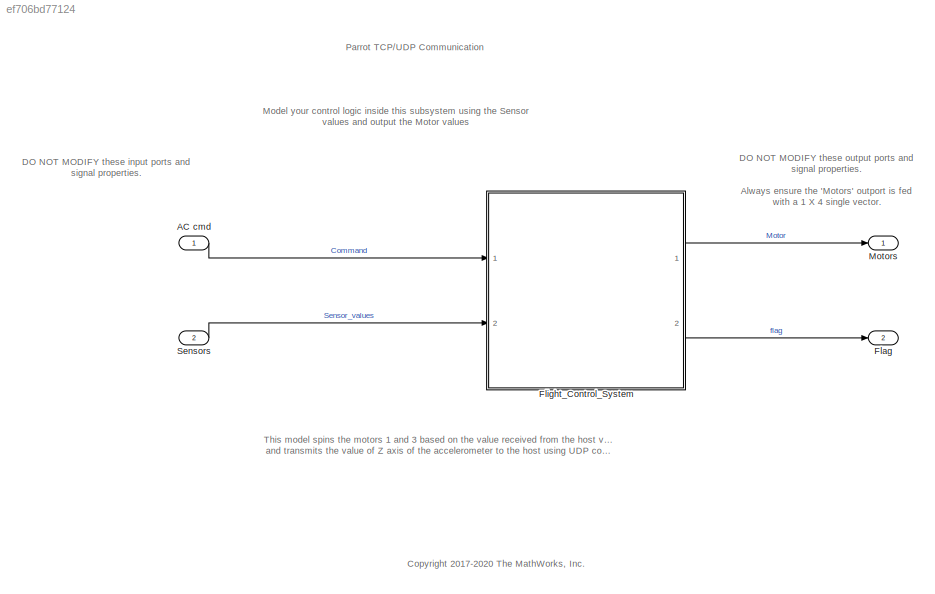
MODEL slx_ef706bd77124
KIND model
CONFIG AbsTol = auto
CONFIG EnableMultiTasking = off
CONFIG FixedStep = auto
CONFIG InitFcn = load('BusDefinitions.mat')
CONFIG MaxStep = auto
CONFIG MinStep = auto
CONFIG RelTol = 1e-3
CONFIG SampleTimeConstraint = Unconstrained
CONFIG SolverName = FixedStepAuto
CONFIG StartTime = 0.0
CONFIG StopTime = 100
BLOCK [Inport] AC cmd
  BusOutputAsStruct = on
  OutDataTypeStr = Bus: CommandBus
BLOCK [Outport] Flag
  OutDataTypeStr = uint8
  Port = 2
  PortDimensions = 1
  VectorParamsAs1DForOutWhenUnconnected = off
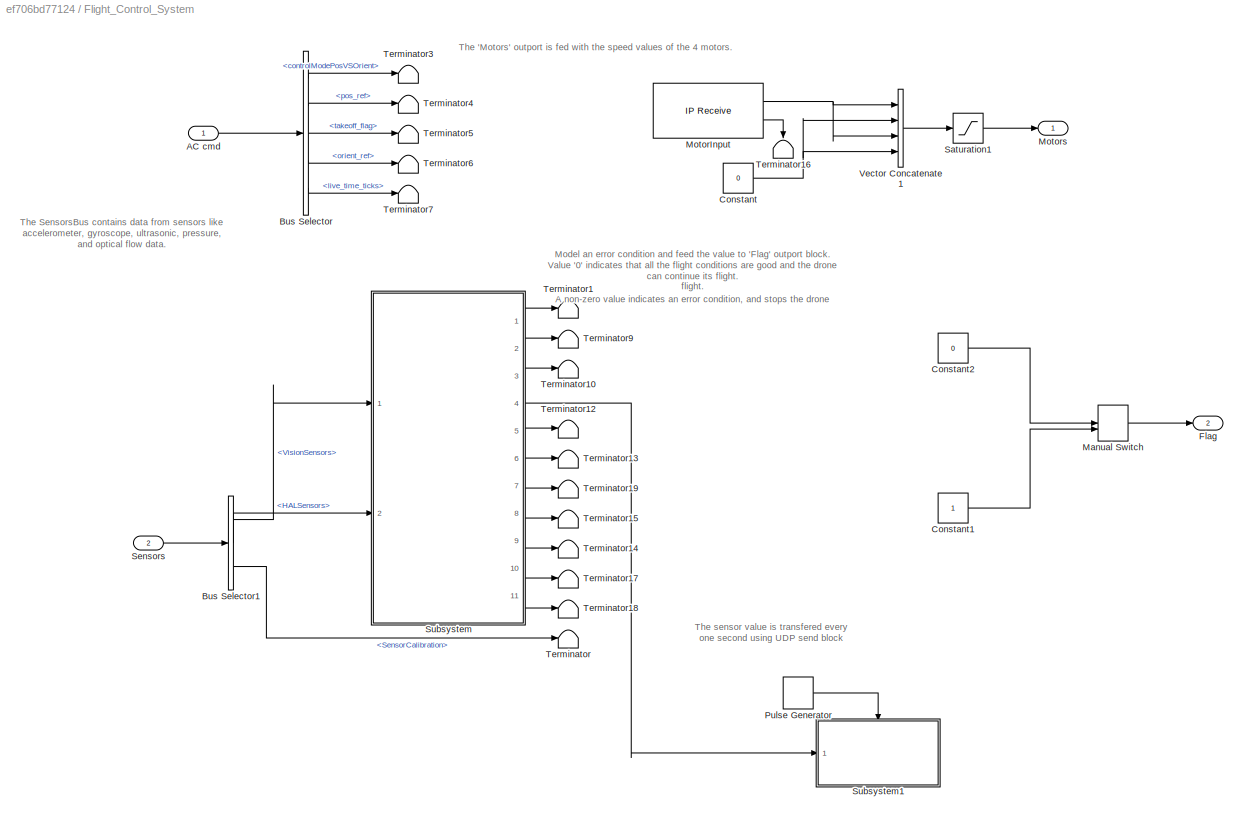
BLOCK [SubSystem] Flight_Control_System
  InitFcn = codertarget.parrot.internal.fcsSubsystemCallback(gcb);
  Ports = [2, 2]
  RTWSystemCode = Reusable function
  RequestExecContextInheritance = off
BLOCK [Inport] Flight_Control_System/AC cmd
BLOCK [BusSelector] Flight_Control_System/Bus Selector
  OutputSignals = controlModePosVSOrient,pos_ref,takeoff_flag,orient_ref,live_time_ticks
  Ports = [1, 5]
BLOCK [BusSelector] Flight_Control_System/Bus Selector1
  OutputSignals = VisionSensors,HALSensors,SensorCalibration
  Ports = [1, 3]
BLOCK [Constant] Flight_Control_System/Constant
  SampleTime = 0.005
  Value = 0
BLOCK [Constant] Flight_Control_System/Constant1
  OutDataTypeStr = uint8
BLOCK [Constant] Flight_Control_System/Constant2
  OutDataTypeStr = uint8
  Value = 0
BLOCK [Outport] Flight_Control_System/Flag
  Port = 2
  VectorParamsAs1DForOutWhenUnconnected = off
BLOCK [ManualSwitch] Flight_Control_System/Manual Switch
BLOCK [Reference] Flight_Control_System/MotorInput  REF=parrotlib/TCP//IP Receive
  Ports = [0, 2]
  SourceBlock = parrotlib/TCP//IP Receive
  SourceProductBaseCode = MINIDRONES
  SourceType = parrot.TCPReceive
BLOCK [Outport] Flight_Control_System/Motors
  VectorParamsAs1DForOutWhenUnconnected = off
BLOCK [DiscretePulseGenerator] Flight_Control_System/Pulse Generator
  Period = 200
  Ports = [0, 1]
  PulseWidth = 5
  SampleTime = 0.005
BLOCK [Saturate] Flight_Control_System/Saturation1
  LowerLimit = 0
  OutDataTypeStr = single
  UpperLimit = 300
BLOCK [Inport] Flight_Control_System/Sensors
  Port = 2
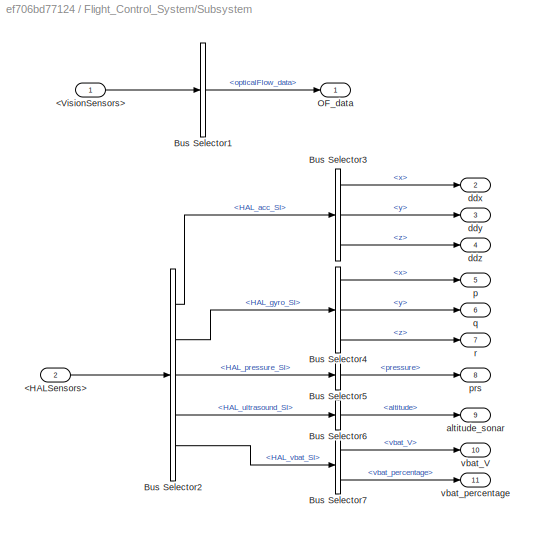
BLOCK [SubSystem] Flight_Control_System/Subsystem
  Ports = [2, 11]
  RequestExecContextInheritance = off
BLOCK [Inport] Flight_Control_System/Subsystem/<HALSensors>
  Port = 2
BLOCK [Inport] Flight_Control_System/Subsystem/<VisionSensors>
BLOCK [BusSelector] Flight_Control_System/Subsystem/Bus Selector1
  OutputSignals = opticalFlow_data
  Ports = [1, 1]
BLOCK [BusSelector] Flight_Control_System/Subsystem/Bus Selector2
  OutputSignals = HAL_acc_SI,HAL_gyro_SI,HAL_pressure_SI,HAL_ultrasound_SI,HAL_vbat_SI
  Ports = [1, 5]
BLOCK [BusSelector] Flight_Control_System/Subsystem/Bus Selector3
  OutputSignals = x,y,z
  Ports = [1, 3]
BLOCK [BusSelector] Flight_Control_System/Subsystem/Bus Selector4
  OutputSignals = x,y,z
  Ports = [1, 3]
BLOCK [BusSelector] Flight_Control_System/Subsystem/Bus Selector5
  OutputSignals = pressure
  Ports = [1, 1]
BLOCK [BusSelector] Flight_Control_System/Subsystem/Bus Selector6
  OutputSignals = altitude
  Ports = [1, 1]
BLOCK [BusSelector] Flight_Control_System/Subsystem/Bus Selector7
  OutputSignals = vbat_V,vbat_percentage
  Ports = [1, 2]
BLOCK [Outport] Flight_Control_System/Subsystem/OF_data
  VectorParamsAs1DForOutWhenUnconnected = off
BLOCK [Outport] Flight_Control_System/Subsystem/altitude_sonar
  Port = 9
  VectorParamsAs1DForOutWhenUnconnected = off
BLOCK [Outport] Flight_Control_System/Subsystem/ddx
  Port = 2
  VectorParamsAs1DForOutWhenUnconnected = off
BLOCK [Outport] Flight_Control_System/Subsystem/ddy
  Port = 3
  VectorParamsAs1DForOutWhenUnconnected = off
BLOCK [Outport] Flight_Control_System/Subsystem/ddz
  Port = 4
  VectorParamsAs1DForOutWhenUnconnected = off
BLOCK [Outport] Flight_Control_System/Subsystem/p
  Port = 5
  VectorParamsAs1DForOutWhenUnconnected = off
BLOCK [Outport] Flight_Control_System/Subsystem/prs
  Port = 8
  VectorParamsAs1DForOutWhenUnconnected = off
BLOCK [Outport] Flight_Control_System/Subsystem/q
  Port = 6
  VectorParamsAs1DForOutWhenUnconnected = off
BLOCK [Outport] Flight_Control_System/Subsystem/r
  Port = 7
  VectorParamsAs1DForOutWhenUnconnected = off
BLOCK [Outport] Flight_Control_System/Subsystem/vbat_V
  Port = 10
  VectorParamsAs1DForOutWhenUnconnected = off
BLOCK [Outport] Flight_Control_System/Subsystem/vbat_percentage
  Port = 11
  VectorParamsAs1DForOutWhenUnconnected = off
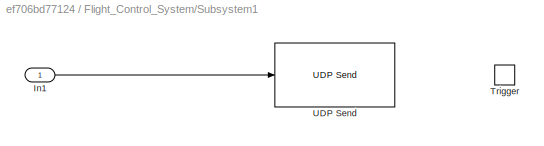
BLOCK [SubSystem] Flight_Control_System/Subsystem1
  Ports = [1, 0, 0, 1]
  RequestExecContextInheritance = off
BLOCK [Inport] Flight_Control_System/Subsystem1/In1
BLOCK [TriggerPort] Flight_Control_System/Subsystem1/Trigger
  PortDimensions = 1
  Ports = []
  StatesWhenEnabling = held
  VariantControl = Variant
BLOCK [Reference] Flight_Control_System/Subsystem1/UDP Send  REF=parrotlib/UDP Send
  Ports = [1]
  SourceBlock = parrotlib/UDP Send
  SourceProductBaseCode = MINIDRONES
  SourceType = UDP Send
BLOCK [Terminator] Flight_Control_System/Terminator
BLOCK [Terminator] Flight_Control_System/Terminator1
BLOCK [Terminator] Flight_Control_System/Terminator10
BLOCK [Terminator] Flight_Control_System/Terminator12
BLOCK [Terminator] Flight_Control_System/Terminator13
BLOCK [Terminator] Flight_Control_System/Terminator14
BLOCK [Terminator] Flight_Control_System/Terminator15
BLOCK [Terminator] Flight_Control_System/Terminator16
  NameLocation = left
BLOCK [Terminator] Flight_Control_System/Terminator17
BLOCK [Terminator] Flight_Control_System/Terminator18
BLOCK [Terminator] Flight_Control_System/Terminator19
BLOCK [Terminator] Flight_Control_System/Terminator3
BLOCK [Terminator] Flight_Control_System/Terminator4
BLOCK [Terminator] Flight_Control_System/Terminator5
BLOCK [Terminator] Flight_Control_System/Terminator6
BLOCK [Terminator] Flight_Control_System/Terminator7
BLOCK [Terminator] Flight_Control_System/Terminator9
BLOCK [Concatenate] Flight_Control_System/Vector Concatenate1
  NumInputs = 4
  Ports = [4, 1]
BLOCK [Outport] Motors
  OutDataTypeStr = single
  PortDimensions = [1 4]
  VectorParamsAs1DForOutWhenUnconnected = off
BLOCK [Inport] Sensors
  BusOutputAsStruct = on
  OutDataTypeStr = Bus: SensorsBus
  Port = 2
ANNOTATION (root): This model spins the motors 1 and 3 based on the value received from the host via TCP and transmits the value of Z axis of the accelerometer to the host using UDP connection.
ANNOTATION (root): <copyright redacted>
ANNOTATION (root): DO NOT MODIFY these input ports and signal properties.
ANNOTATION (root): DO NOT MODIFY these output ports and signal properties. Always ensure the 'Motors' outport is fed with a 1 X 4 single vector. Always ensure the 'Flag' outport is fed with a 1 X 1 uint8 value.
ANNOTATION (root): Model your control logic inside this subsystem using the Sensor values and output the Motor values
ANNOTATION (root): Parrot TCP/UDP Communication
ANNOTATION Flight_Control_System: Model an error condition and feed the value to 'Flag' outport block. Value '0' indicates that all the flight conditions are good and the drone can continue its flight. A non-zero value indicates an error condition, and stops the drone flight.
ANNOTATION Flight_Control_System: The 'Motors' outport is fed with the speed values of the 4 motors.
ANNOTATION Flight_Control_System: The SensorsBus contains data from sensors like accelerometer, gyroscope, ultrasonic, pressure, and optical flow data.
ANNOTATION Flight_Control_System: The sensor value is transfered every one second using UDP send block
LINE AC cmd:1 -> Flight_Control_System:1
LINE Flight_Control_System/AC cmd:1 -> Flight_Control_System/Bus Selector:1
LINE Flight_Control_System/Bus Selector1:1 -> Flight_Control_System/Subsystem:1
LINE Flight_Control_System/Bus Selector1:2 -> Flight_Control_System/Subsystem:2
LINE Flight_Control_System/Bus Selector1:3 -> Flight_Control_System/Terminator:1
LINE Flight_Control_System/Bus Selector:1 -> Flight_Control_System/Terminator3:1
LINE Flight_Control_System/Bus Selector:2 -> Flight_Control_System/Terminator4:1
LINE Flight_Control_System/Bus Selector:3 -> Flight_Control_System/Terminator5:1
LINE Flight_Control_System/Bus Selector:4 -> Flight_Control_System/Terminator6:1
LINE Flight_Control_System/Bus Selector:5 -> Flight_Control_System/Terminator7:1
LINE Flight_Control_System/Constant1:1 -> Flight_Control_System/Manual Switch:2
LINE Flight_Control_System/Constant2:1 -> Flight_Control_System/Manual Switch:1
NET Flight_Control_System/Constant:1 -> Flight_Control_System/Vector Concatenate1:2, Flight_Control_System/Vector Concatenate1:4
LINE Flight_Control_System/Manual Switch:1 -> Flight_Control_System/Flag:1
NET Flight_Control_System/MotorInput:1 -> Flight_Control_System/Vector Concatenate1:1, Flight_Control_System/Vector Concatenate1:3
LINE Flight_Control_System/MotorInput:2 -> Flight_Control_System/Terminator16:1
LINE Flight_Control_System/Pulse Generator:1 -> Flight_Control_System/Subsystem1:trigger
LINE Flight_Control_System/Saturation1:1 -> Flight_Control_System/Motors:1
LINE Flight_Control_System/Sensors:1 -> Flight_Control_System/Bus Selector1:1
LINE Flight_Control_System/Subsystem/<HALSensors>:1 -> Flight_Control_System/Subsystem/Bus Selector2:1
LINE Flight_Control_System/Subsystem/<VisionSensors>:1 -> Flight_Control_System/Subsystem/Bus Selector1:1
LINE Flight_Control_System/Subsystem/Bus Selector1:1 -> Flight_Control_System/Subsystem/OF_data:1
LINE Flight_Control_System/Subsystem/Bus Selector2:1 -> Flight_Control_System/Subsystem/Bus Selector3:1
LINE Flight_Control_System/Subsystem/Bus Selector2:2 -> Flight_Control_System/Subsystem/Bus Selector4:1
LINE Flight_Control_System/Subsystem/Bus Selector2:3 -> Flight_Control_System/Subsystem/Bus Selector5:1
LINE Flight_Control_System/Subsystem/Bus Selector2:4 -> Flight_Control_System/Subsystem/Bus Selector6:1
LINE Flight_Control_System/Subsystem/Bus Selector2:5 -> Flight_Control_System/Subsystem/Bus Selector7:1
LINE Flight_Control_System/Subsystem/Bus Selector3:1 -> Flight_Control_System/Subsystem/ddx:1
LINE Flight_Control_System/Subsystem/Bus Selector3:2 -> Flight_Control_System/Subsystem/ddy:1
LINE Flight_Control_System/Subsystem/Bus Selector3:3 -> Flight_Control_System/Subsystem/ddz:1
LINE Flight_Control_System/Subsystem/Bus Selector4:1 -> Flight_Control_System/Subsystem/p:1
LINE Flight_Control_System/Subsystem/Bus Selector4:2 -> Flight_Control_System/Subsystem/q:1
LINE Flight_Control_System/Subsystem/Bus Selector4:3 -> Flight_Control_System/Subsystem/r:1
LINE Flight_Control_System/Subsystem/Bus Selector5:1 -> Flight_Control_System/Subsystem/prs:1
LINE Flight_Control_System/Subsystem/Bus Selector6:1 -> Flight_Control_System/Subsystem/altitude_sonar:1
LINE Flight_Control_System/Subsystem/Bus Selector7:1 -> Flight_Control_System/Subsystem/vbat_V:1
LINE Flight_Control_System/Subsystem/Bus Selector7:2 -> Flight_Control_System/Subsystem/vbat_percentage:1
LINE Flight_Control_System/Subsystem1/In1:1 -> Flight_Control_System/Subsystem1/UDP Send:1
LINE Flight_Control_System/Subsystem:1 -> Flight_Control_System/Terminator1:1
LINE Flight_Control_System/Subsystem:10 -> Flight_Control_System/Terminator17:1
LINE Flight_Control_System/Subsystem:11 -> Flight_Control_System/Terminator18:1
LINE Flight_Control_System/Subsystem:2 -> Flight_Control_System/Terminator9:1
LINE Flight_Control_System/Subsystem:3 -> Flight_Control_System/Terminator10:1
LINE Flight_Control_System/Subsystem:4 -> Flight_Control_System/Subsystem1:1
LINE Flight_Control_System/Subsystem:5 -> Flight_Control_System/Terminator12:1
LINE Flight_Control_System/Subsystem:6 -> Flight_Control_System/Terminator13:1
LINE Flight_Control_System/Subsystem:7 -> Flight_Control_System/Terminator19:1
LINE Flight_Control_System/Subsystem:8 -> Flight_Control_System/Terminator15:1
LINE Flight_Control_System/Subsystem:9 -> Flight_Control_System/Terminator14:1
LINE Flight_Control_System/Vector Concatenate1:1 -> Flight_Control_System/Saturation1:1
LINE Flight_Control_System:1 -> Motors:1
LINE Flight_Control_System:2 -> Flag:1
LINE Sensors:1 -> Flight_Control_System:2
note: NET lines group one-source signal fan-out (src -> all destinations, sorted); 1:1 wires keep LINE
